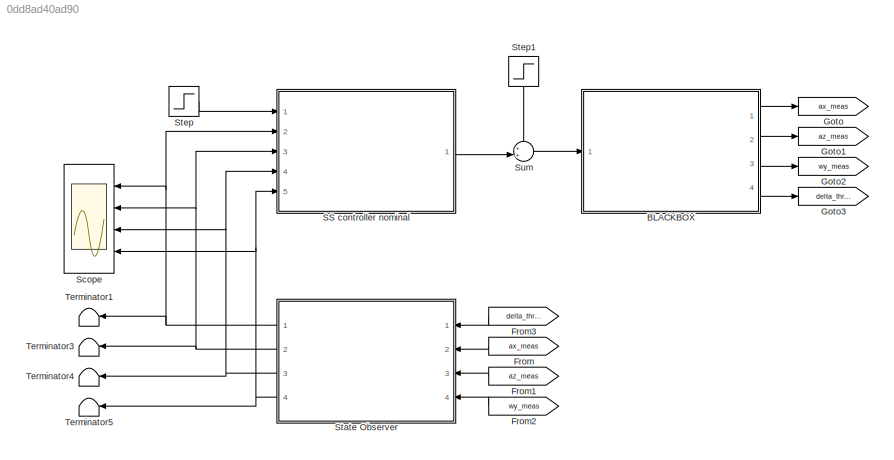
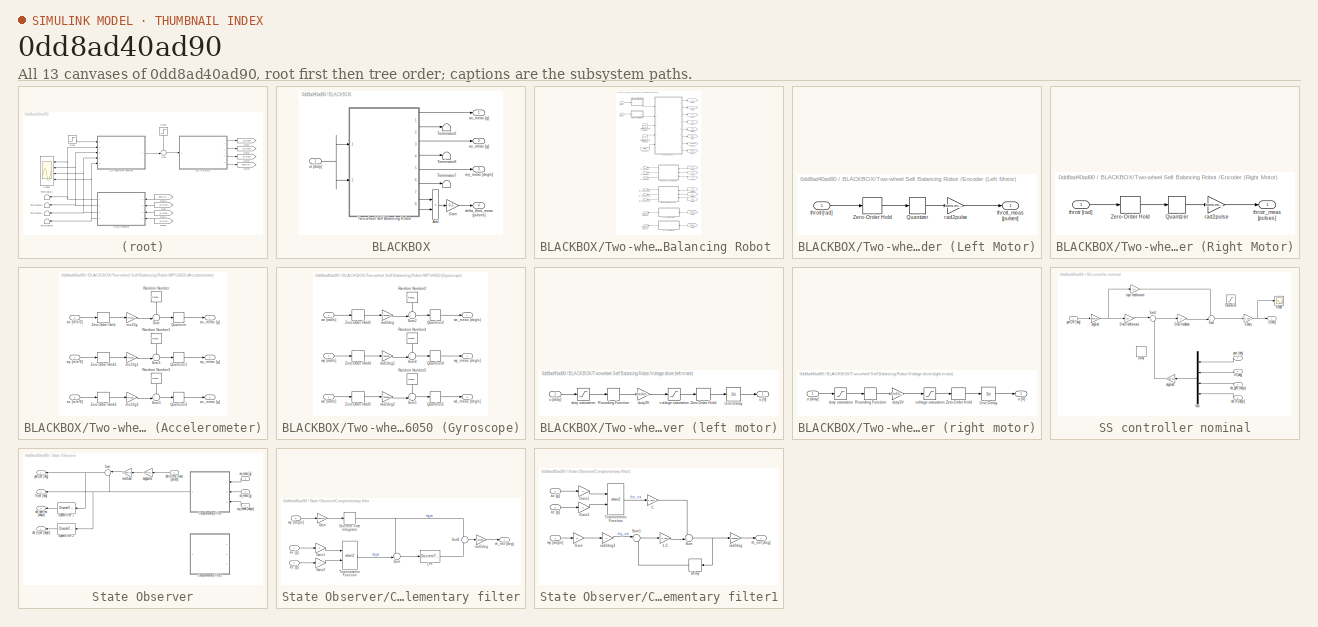
[diagram: thumbnail index - all 13 canvases of the model, root first then tree order]
MODEL slx_0dd8ad40ad90
KIND model
CONFIG AbsTol = auto
CONFIG EnableMultiTasking = off
CONFIG FixedStep = 0.01
CONFIG MaxStep = auto
CONFIG MinStep = auto
CONFIG RelTol = 1e-3
CONFIG SampleTimeConstraint = Unconstrained
CONFIG SolverName = ode45
CONFIG StartTime = 0.0
CONFIG StopTime = 20.0
BLOCK [SubSystem] BLACKBOX
  Ports = [1, 4]
  RequestExecContextInheritance = off
BLOCK [Sum] BLACKBOX/Add
  IconShape = rectangular
  Ports = [2, 1]
BLOCK [Gain] BLACKBOX/Gain
  Gain = 0.5
BLOCK [Terminator] BLACKBOX/Terminator2
BLOCK [Terminator] BLACKBOX/Terminator6
BLOCK [Terminator] BLACKBOX/Terminator7
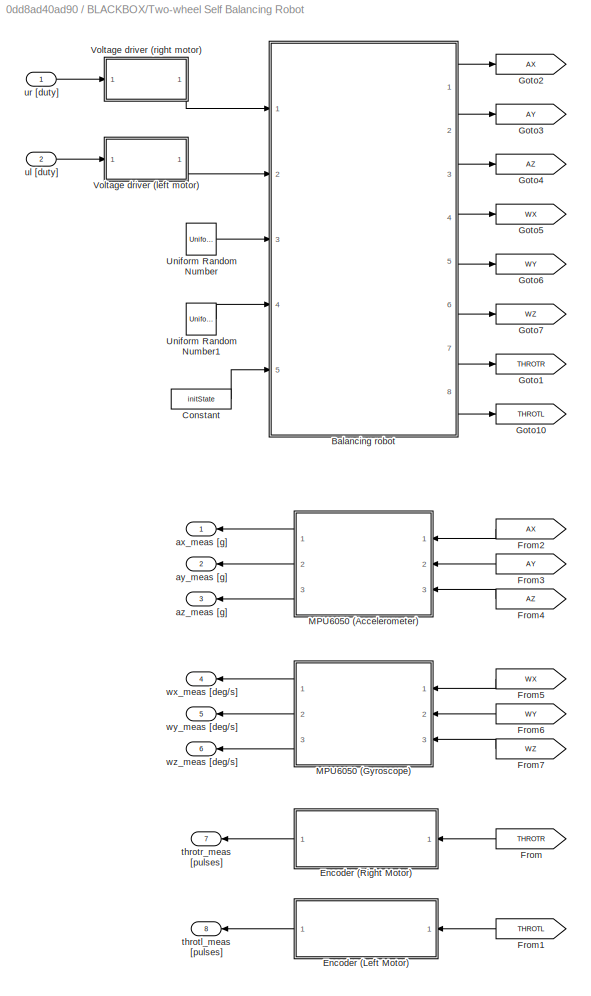
BLOCK [SubSystem] BLACKBOX/Two-wheel Self Balancing Robot 
  Ports = [2, 8]
  RequestExecContextInheritance = off
BLOCK [ModelReference] BLACKBOX/Two-wheel Self Balancing Robot /Balancing robot
  CopyOfModelProtected = on
  ModelNameDialog = balrob3d_win64.slxp
  ModelReferenceVersion = 1.741
  Ports = [5, 8]
BLOCK [Constant] BLACKBOX/Two-wheel Self Balancing Robot /Constant
  Value = initState
BLOCK [SubSystem] BLACKBOX/Two-wheel Self Balancing Robot /Encoder (Left Motor)
  Ports = [1, 1]
  RequestExecContextInheritance = off
BLOCK [Quantizer] BLACKBOX/Two-wheel Self Balancing Robot /Encoder (Left Motor)/Quantizer
  QuantizationInterval = sens.enc.pulse2rad
BLOCK [ZeroOrderHold] BLACKBOX/Two-wheel Self Balancing Robot /Encoder (Left Motor)/Zero-Order Hold
  SampleTime = Ts
BLOCK [Gain] BLACKBOX/Two-wheel Self Balancing Robot /Encoder (Left Motor)/rad2pulse
  Gain = sens.enc.rad2pulse
BLOCK [Inport] BLACKBOX/Two-wheel Self Balancing Robot /Encoder (Left Motor)/throtl [rad]
BLOCK [Outport] BLACKBOX/Two-wheel Self Balancing Robot /Encoder (Left Motor)/throtl_meas [pulses]
BLOCK [SubSystem] BLACKBOX/Two-wheel Self Balancing Robot /Encoder (Right Motor)
  Ports = [1, 1]
  RequestExecContextInheritance = off
BLOCK [Quantizer] BLACKBOX/Two-wheel Self Balancing Robot /Encoder (Right Motor)/Quantizer
  QuantizationInterval = sens.enc.pulse2rad
BLOCK [ZeroOrderHold] BLACKBOX/Two-wheel Self Balancing Robot /Encoder (Right Motor)/Zero-Order Hold
  SampleTime = Ts
BLOCK [Gain] BLACKBOX/Two-wheel Self Balancing Robot /Encoder (Right Motor)/rad2pulse
  Gain = sens.enc.rad2pulse
BLOCK [Inport] BLACKBOX/Two-wheel Self Balancing Robot /Encoder (Right Motor)/throtr [rad]
BLOCK [Outport] BLACKBOX/Two-wheel Self Balancing Robot /Encoder (Right Motor)/throtr_meas [pulses]
BLOCK [From] BLACKBOX/Two-wheel Self Balancing Robot /From
  GotoTag = THROTR
  NameLocation = top
BLOCK [From] BLACKBOX/Two-wheel Self Balancing Robot /From1
  GotoTag = THROTL
  NameLocation = top
BLOCK [From] BLACKBOX/Two-wheel Self Balancing Robot /From2
  GotoTag = AX
  NameLocation = top
BLOCK [From] BLACKBOX/Two-wheel Self Balancing Robot /From3
  GotoTag = AY
  NameLocation = top
BLOCK [From] BLACKBOX/Two-wheel Self Balancing Robot /From4
  GotoTag = AZ
  NameLocation = top
BLOCK [From] BLACKBOX/Two-wheel Self Balancing Robot /From5
  GotoTag = WX
  NameLocation = top
BLOCK [From] BLACKBOX/Two-wheel Self Balancing Robot /From6
  GotoTag = WY
  NameLocation = top
BLOCK [From] BLACKBOX/Two-wheel Self Balancing Robot /From7
  GotoTag = WZ
  NameLocation = top
BLOCK [Goto] BLACKBOX/Two-wheel Self Balancing Robot /Goto1
  GotoTag = THROTR
BLOCK [Goto] BLACKBOX/Two-wheel Self Balancing Robot /Goto10
  GotoTag = THROTL
BLOCK [Goto] BLACKBOX/Two-wheel Self Balancing Robot /Goto2
  GotoTag = AX
BLOCK [Goto] BLACKBOX/Two-wheel Self Balancing Robot /Goto3
  GotoTag = AY
BLOCK [Goto] BLACKBOX/Two-wheel Self Balancing Robot /Goto4
  GotoTag = AZ
BLOCK [Goto] BLACKBOX/Two-wheel Self Balancing Robot /Goto5
  GotoTag = WX
BLOCK [Goto] BLACKBOX/Two-wheel Self Balancing Robot /Goto6
  GotoTag = WY
BLOCK [Goto] BLACKBOX/Two-wheel Self Balancing Robot /Goto7
  GotoTag = WZ
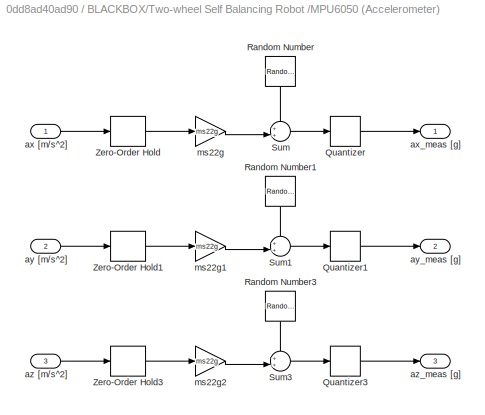
BLOCK [SubSystem] BLACKBOX/Two-wheel Self Balancing Robot /MPU6050 (Accelerometer)
  Ports = [3, 3]
  RequestExecContextInheritance = off
BLOCK [Quantizer] BLACKBOX/Two-wheel Self Balancing Robot /MPU6050 (Accelerometer)/Quantizer
  QuantizationInterval = sens.mpu.acc.LSB2g
BLOCK [Quantizer] BLACKBOX/Two-wheel Self Balancing Robot /MPU6050 (Accelerometer)/Quantizer1
  QuantizationInterval = sens.mpu.acc.LSB2g
BLOCK [Quantizer] BLACKBOX/Two-wheel Self Balancing Robot /MPU6050 (Accelerometer)/Quantizer3
  QuantizationInterval = sens.mpu.acc.LSB2g
BLOCK [RandomNumber] BLACKBOX/Two-wheel Self Balancing Robot /MPU6050 (Accelerometer)/Random Number
  NameLocation = left
  SampleTime = Ts
  Seed = 1
  Variance = sens.mpu.acc.noisevar
BLOCK [RandomNumber] BLACKBOX/Two-wheel Self Balancing Robot /MPU6050 (Accelerometer)/Random Number1
  NameLocation = left
  SampleTime = Ts
  Seed = 10
  Variance = sens.mpu.acc.noisevar
BLOCK [RandomNumber] BLACKBOX/Two-wheel Self Balancing Robot /MPU6050 (Accelerometer)/Random Number3
  NameLocation = left
  SampleTime = Ts
  Seed = 100
  Variance = sens.mpu.acc.noisevar
BLOCK [Sum] BLACKBOX/Two-wheel Self Balancing Robot /MPU6050 (Accelerometer)/Sum
  Inputs = ++|
  Ports = [2, 1]
BLOCK [Sum] BLACKBOX/Two-wheel Self Balancing Robot /MPU6050 (Accelerometer)/Sum1
  Inputs = ++|
  Ports = [2, 1]
BLOCK [Sum] BLACKBOX/Two-wheel Self Balancing Robot /MPU6050 (Accelerometer)/Sum3
  Inputs = ++|
  Ports = [2, 1]
BLOCK [ZeroOrderHold] BLACKBOX/Two-wheel Self Balancing Robot /MPU6050 (Accelerometer)/Zero-Order Hold
  SampleTime = Ts
BLOCK [ZeroOrderHold] BLACKBOX/Two-wheel Self Balancing Robot /MPU6050 (Accelerometer)/Zero-Order Hold1
  SampleTime = Ts
BLOCK [ZeroOrderHold] BLACKBOX/Two-wheel Self Balancing Robot /MPU6050 (Accelerometer)/Zero-Order Hold3
  SampleTime = Ts
BLOCK [Inport] BLACKBOX/Two-wheel Self Balancing Robot /MPU6050 (Accelerometer)/ax [m//s^2]
BLOCK [Outport] BLACKBOX/Two-wheel Self Balancing Robot /MPU6050 (Accelerometer)/ax_meas [g]
BLOCK [Inport] BLACKBOX/Two-wheel Self Balancing Robot /MPU6050 (Accelerometer)/ay [m//s^2]
  Port = 2
BLOCK [Outport] BLACKBOX/Two-wheel Self Balancing Robot /MPU6050 (Accelerometer)/ay_meas [g]
  Port = 2
BLOCK [Inport] BLACKBOX/Two-wheel Self Balancing Robot /MPU6050 (Accelerometer)/az [m//s^2]
  Port = 3
BLOCK [Outport] BLACKBOX/Two-wheel Self Balancing Robot /MPU6050 (Accelerometer)/az_meas [g]
  Port = 3
BLOCK [Gain] BLACKBOX/Two-wheel Self Balancing Robot /MPU6050 (Accelerometer)/ms22g
  Gain = ms22g
BLOCK [Gain] BLACKBOX/Two-wheel Self Balancing Robot /MPU6050 (Accelerometer)/ms22g1
  Gain = ms22g
BLOCK [Gain] BLACKBOX/Two-wheel Self Balancing Robot /MPU6050 (Accelerometer)/ms22g2
  Gain = ms22g
BLOCK [SubSystem] BLACKBOX/Two-wheel Self Balancing Robot /MPU6050 (Gyroscope)
  Ports = [3, 3]
  RequestExecContextInheritance = off
BLOCK [Quantizer] BLACKBOX/Two-wheel Self Balancing Robot /MPU6050 (Gyroscope)/Quantizer2
  QuantizationInterval = sens.mpu.gyro.LSB2degs
BLOCK [Quantizer] BLACKBOX/Two-wheel Self Balancing Robot /MPU6050 (Gyroscope)/Quantizer4
  QuantizationInterval = sens.mpu.gyro.LSB2degs
BLOCK [Quantizer] BLACKBOX/Two-wheel Self Balancing Robot /MPU6050 (Gyroscope)/Quantizer5
  QuantizationInterval = sens.mpu.gyro.LSB2degs
BLOCK [RandomNumber] BLACKBOX/Two-wheel Self Balancing Robot /MPU6050 (Gyroscope)/Random Number2
  NameLocation = left
  SampleTime = Ts
  Seed = 2
  Variance = sens.mpu.gyro.noisevar
BLOCK [RandomNumber] BLACKBOX/Two-wheel Self Balancing Robot /MPU6050 (Gyroscope)/Random Number4
  NameLocation = left
  SampleTime = Ts
  Seed = 20
  Variance = sens.mpu.gyro.noisevar
BLOCK [RandomNumber] BLACKBOX/Two-wheel Self Balancing Robot /MPU6050 (Gyroscope)/Random Number5
  NameLocation = left
  SampleTime = Ts
  Seed = 200
  Variance = sens.mpu.gyro.noisevar
BLOCK [Sum] BLACKBOX/Two-wheel Self Balancing Robot /MPU6050 (Gyroscope)/Sum2
  Inputs = ++|
  Ports = [2, 1]
BLOCK [Sum] BLACKBOX/Two-wheel Self Balancing Robot /MPU6050 (Gyroscope)/Sum4
  Inputs = ++|
  Ports = [2, 1]
BLOCK [Sum] BLACKBOX/Two-wheel Self Balancing Robot /MPU6050 (Gyroscope)/Sum5
  Inputs = ++|
  Ports = [2, 1]
BLOCK [ZeroOrderHold] BLACKBOX/Two-wheel Self Balancing Robot /MPU6050 (Gyroscope)/Zero-Order Hold2
  SampleTime = Ts
BLOCK [ZeroOrderHold] BLACKBOX/Two-wheel Self Balancing Robot /MPU6050 (Gyroscope)/Zero-Order Hold4
  SampleTime = Ts
BLOCK [ZeroOrderHold] BLACKBOX/Two-wheel Self Balancing Robot /MPU6050 (Gyroscope)/Zero-Order Hold5
  SampleTime = Ts
BLOCK [Gain] BLACKBOX/Two-wheel Self Balancing Robot /MPU6050 (Gyroscope)/rad2deg
  Gain = rad2deg
BLOCK [Gain] BLACKBOX/Two-wheel Self Balancing Robot /MPU6050 (Gyroscope)/rad2deg1
  Gain = rad2deg
BLOCK [Gain] BLACKBOX/Two-wheel Self Balancing Robot /MPU6050 (Gyroscope)/rad2deg2
  Gain = rad2deg
BLOCK [Inport] BLACKBOX/Two-wheel Self Balancing Robot /MPU6050 (Gyroscope)/wx [rad//s]
BLOCK [Outport] BLACKBOX/Two-wheel Self Balancing Robot /MPU6050 (Gyroscope)/wx_meas [deg//s]
BLOCK [Inport] BLACKBOX/Two-wheel Self Balancing Robot /MPU6050 (Gyroscope)/wy [rad//s]
  Port = 2
BLOCK [Outport] BLACKBOX/Two-wheel Self Balancing Robot /MPU6050 (Gyroscope)/wy_meas [deg//s]
  Port = 2
BLOCK [Inport] BLACKBOX/Two-wheel Self Balancing Robot /MPU6050 (Gyroscope)/wz [rad//s]
  Port = 3
BLOCK [Outport] BLACKBOX/Two-wheel Self Balancing Robot /MPU6050 (Gyroscope)/wz_meas [deg//s]
  Port = 3
BLOCK [UniformRandomNumber] BLACKBOX/Two-wheel Self Balancing Robot /Uniform Random Number
  Maximum = 1.3
  Minimum = 0.7
  SampleTime = 1
BLOCK [UniformRandomNumber] BLACKBOX/Two-wheel Self Balancing Robot /Uniform Random Number1
  Maximum = 1.3
  Minimum = 0.7
  SampleTime = 1
  Seed = 10
BLOCK [SubSystem] BLACKBOX/Two-wheel Self Balancing Robot /Voltage driver (left motor)
  Ports = [1, 1]
  RequestExecContextInheritance = off
BLOCK [Rounding] BLACKBOX/Two-wheel Self Balancing Robot /Voltage driver (left motor)/Rounding Function
  Operator = fix
BLOCK [UnitDelay] BLACKBOX/Two-wheel Self Balancing Robot /Voltage driver (left motor)/Unit Delay
  HasFrameUpgradeWarning = on
  SampleTime = 1/drv.pwm.Fs
BLOCK [ZeroOrderHold] BLACKBOX/Two-wheel Self Balancing Robot /Voltage driver (left motor)/Zero-Order Hold
  SampleTime = Ts
BLOCK [Saturate] BLACKBOX/Two-wheel Self Balancing Robot /Voltage driver (left motor)/duty saturation
  LowerLimit = -255
  UpperLimit = 255
BLOCK [Gain] BLACKBOX/Two-wheel Self Balancing Robot /Voltage driver (left motor)/duty2V
  Gain = drv.duty2V
BLOCK [Outport] BLACKBOX/Two-wheel Self Balancing Robot /Voltage driver (left motor)/u [V]
BLOCK [Inport] BLACKBOX/Two-wheel Self Balancing Robot /Voltage driver (left motor)/u [duty]
BLOCK [Saturate] BLACKBOX/Two-wheel Self Balancing Robot /Voltage driver (left motor)/voltage saturation
  LowerLimit = -drv.Vbus
  UpperLimit = drv.Vbus
BLOCK [SubSystem] BLACKBOX/Two-wheel Self Balancing Robot /Voltage driver (right motor)
  Ports = [1, 1]
  RequestExecContextInheritance = off
BLOCK [Rounding] BLACKBOX/Two-wheel Self Balancing Robot /Voltage driver (right motor)/Rounding Function
  Operator = fix
BLOCK [UnitDelay] BLACKBOX/Two-wheel Self Balancing Robot /Voltage driver (right motor)/Unit Delay
  HasFrameUpgradeWarning = on
  SampleTime = 1/drv.pwm.Fs
BLOCK [ZeroOrderHold] BLACKBOX/Two-wheel Self Balancing Robot /Voltage driver (right motor)/Zero-Order Hold
  SampleTime = Ts
BLOCK [Saturate] BLACKBOX/Two-wheel Self Balancing Robot /Voltage driver (right motor)/duty saturation
  LowerLimit = -255
  UpperLimit = 255
BLOCK [Gain] BLACKBOX/Two-wheel Self Balancing Robot /Voltage driver (right motor)/duty2V
  Gain = drv.duty2V
BLOCK [Outport] BLACKBOX/Two-wheel Self Balancing Robot /Voltage driver (right motor)/u [V]
BLOCK [Inport] BLACKBOX/Two-wheel Self Balancing Robot /Voltage driver (right motor)/u [duty]
BLOCK [Saturate] BLACKBOX/Two-wheel Self Balancing Robot /Voltage driver (right motor)/voltage saturation
  LowerLimit = -drv.Vbus
  UpperLimit = drv.Vbus
BLOCK [Outport] BLACKBOX/Two-wheel Self Balancing Robot /ax_meas [g]
BLOCK [Outport] BLACKBOX/Two-wheel Self Balancing Robot /ay_meas [g]
  Port = 2
BLOCK [Outport] BLACKBOX/Two-wheel Self Balancing Robot /az_meas [g]
  Port = 3
BLOCK [Outport] BLACKBOX/Two-wheel Self Balancing Robot /throtl_meas [pulses]
  Port = 8
BLOCK [Outport] BLACKBOX/Two-wheel Self Balancing Robot /throtr_meas [pulses]
  Port = 7
BLOCK [Inport] BLACKBOX/Two-wheel Self Balancing Robot /ul [duty]
  Port = 2
BLOCK [Inport] BLACKBOX/Two-wheel Self Balancing Robot /ur [duty]
BLOCK [Outport] BLACKBOX/Two-wheel Self Balancing Robot /wx_meas [deg//s]
  Port = 4
BLOCK [Outport] BLACKBOX/Two-wheel Self Balancing Robot /wy_meas [deg//s]
  Port = 5
BLOCK [Outport] BLACKBOX/Two-wheel Self Balancing Robot /wz_meas [deg//s]
  Port = 6
BLOCK [Outport] BLACKBOX/ax_meas [g]
BLOCK [Outport] BLACKBOX/az_meas [g]
  Port = 2
BLOCK [Outport] BLACKBOX/delta_throt_meas [pulses]
  Port = 4
BLOCK [Inport] BLACKBOX/ul [duty]
BLOCK [Outport] BLACKBOX/wy_meas [deg//s]
  Port = 3
BLOCK [From] From
  GotoTag = ax_meas
BLOCK [From] From1
  GotoTag = az_meas
BLOCK [From] From2
  GotoTag = wy_meas
BLOCK [From] From3
  GotoTag = delta_throt
BLOCK [Goto] Goto
  GotoTag = ax_meas
BLOCK [Goto] Goto1
  GotoTag = az_meas
BLOCK [Goto] Goto2
  GotoTag = wy_meas
BLOCK [Goto] Goto3
  GotoTag = delta_throt
BLOCK [SubSystem] SS controller nominal
  Ports = [5, 1]
  RequestExecContextInheritance = off
BLOCK [Delay] SS controller nominal/Delay
  DelayLength = 1
  InitialCondition = 0
  InputPortMap = u0
  NameLocation = right
  Ports = [1, 1]
BLOCK [Gain] SS controller nominal/Input feedforward
  Gain = N_u
BLOCK [Mux] SS controller nominal/Mux
  DisplayOption = bar
  Ports = [4, 1]
BLOCK [Saturate] SS controller nominal/Saturation
  LowerLimit = -10
  UpperLimit = 10
BLOCK [Scope] SS controller nominal/Scope
  Floating = off
  NumInputPorts = 1
  Ports = [1]
  ScopeSpecificationString = Simulink.scopes.TimeScopeBlockCfg('CurrentConfiguration', extmgr.ConfigurationSet(extmgr.Configuration('Core','General UI',true),extmgr.Configuration('Core','Source UI',true),extmgr.Configuration('Sources','WiredSimulink',true,'DataLoggingVariableName','aaaaa','DataLogging',true,'DataLoggingSaveFormat','StructureWithTime'),extmgr.Configuration('Visuals','Time Domain',true,'SerializedDisplays',{str...<+1479ch>
BLOCK [Gain] SS controller nominal/State feedback
  Gain = K'
  Multiplication = Matrix(u*K)
BLOCK [Gain] SS controller nominal/State feedforward	
  Gain = N_x
  Multiplication = Matrix(u*K)
BLOCK [Sum] SS controller nominal/Sum
  Inputs = ++|
  Ports = [2, 1]
BLOCK [Sum] SS controller nominal/Sum2
  Inputs = |+-
  Ports = [2, 1]
BLOCK [Gain] SS controller nominal/V2duty
  Gain = drv.V2duty
BLOCK [Gain] SS controller nominal/deg2rad
  Gain = deg2rad
BLOCK [Gain] SS controller nominal/deg2rad1
  Gain = deg2rad
BLOCK [Inport] SS controller nominal/dot_gam [deg//s]
  Port = 4
BLOCK [Inport] SS controller nominal/dot_th [deg//s]
  Port = 5
BLOCK [Inport] SS controller nominal/gam [deg]
  Port = 2
BLOCK [Inport] SS controller nominal/gam_ref [deg]
BLOCK [Inport] SS controller nominal/th [deg]
  Port = 3
BLOCK [Outport] SS controller nominal/u [duty]
BLOCK [Scope] Scope
  Floating = off
  NumInputPorts = 4
  Ports = [4]
  ScopeSpecificationString = Simulink.scopes.TimeScopeBlockCfg('CurrentConfiguration', extmgr.ConfigurationSet(extmgr.Configuration('Core','General UI',true),extmgr.Configuration('Core','Source UI',true),extmgr.Configuration('Sources','WiredSimulink',true,'DataLogging',true,'DataLoggingVariableName','MotorData','DataLoggingSaveFormat','StructureWithTime'),extmgr.Configuration('Visuals','Time Domain',true,'SerializedDisplays',...<+3560ch>
BLOCK [SubSystem] State Observer
  Ports = [4, 4]
  RequestExecContextInheritance = off
BLOCK [SubSystem] State Observer/Complementary filter
  Ports = [3, 1]
  RequestExecContextInheritance = off
BLOCK [DiscreteIntegrator] State Observer/Complementary filter/Discrete-Time Integrator
  ICPrevOutput = DiscIntNeverNeededParam
  ICPrevScaledInput = DiscIntNeverNeededParam
  InitialConditionSetting = Auto
  Ports = [1, 1]
  SampleTime = Ts
  gainval = 1
BLOCK [Gain] State Observer/Complementary filter/Gain
  Gain = deg2rad
BLOCK [Gain] State Observer/Complementary filter/Gain1
BLOCK [Gain] State Observer/Complementary filter/Gain2
  Gain = -1
BLOCK [DiscreteTransferFcn] State Observer/Complementary filter/LPF
  Denominator = [denLPFz]
  InputPortMap = u0
  Numerator = [numLPFz]
  Ports = [1, 1]
  SampleTime = Ts
BLOCK [Sum] State Observer/Complementary filter/Sum
  Inputs = -+|
  Ports = [2, 1]
BLOCK [Sum] State Observer/Complementary filter/Sum1
  Ports = [2, 1]
BLOCK [Trigonometry] State Observer/Complementary filter/Trigonometric Function
  Operator = atan2
  Ports = [2, 1]
BLOCK [Inport] State Observer/Complementary filter/ax [g] 
BLOCK [Inport] State Observer/Complementary filter/az [g] 
  Port = 2
BLOCK [Gain] State Observer/Complementary filter/rad2deg
  Gain = rad2deg
BLOCK [Outport] State Observer/Complementary filter/th_est [deg] 
BLOCK [Inport] State Observer/Complementary filter/wy [deg//s]
  Port = 3
BLOCK [SubSystem] State Observer/Complementary filter1
  Ports = [3, 1]
  RequestExecContextInheritance = off
BLOCK [Gain] State Observer/Complementary filter1/1-C
  Gain = 1-C_gain
BLOCK [Gain] State Observer/Complementary filter1/C
  Gain = C_gain
BLOCK [Delay] State Observer/Complementary filter1/Delay
  DelayLength = 1
  InputPortMap = u0
  NameLocation = top
  Ports = [1, 1]
BLOCK [Gain] State Observer/Complementary filter1/Gain
  Gain = 11
BLOCK [Gain] State Observer/Complementary filter1/Gain1
BLOCK [Gain] State Observer/Complementary filter1/Gain2
  Gain = -1
BLOCK [Sum] State Observer/Complementary filter1/Sum
  Inputs = ++|
  Ports = [2, 1]
BLOCK [Sum] State Observer/Complementary filter1/Sum1
  Inputs = |++
  Ports = [2, 1]
BLOCK [Trigonometry] State Observer/Complementary filter1/Trigonometric Function
  Operator = atan2
  Ports = [2, 1]
BLOCK [Inport] State Observer/Complementary filter1/ax [g] 
  Port = 2
BLOCK [Inport] State Observer/Complementary filter1/az [g] 
  Port = 3
BLOCK [Gain] State Observer/Complementary filter1/rad2deg
  Gain = rad2deg
BLOCK [Gain] State Observer/Complementary filter1/rad2deg3
  Gain = T
BLOCK [Outport] State Observer/Complementary filter1/th_est [deg] 
BLOCK [Inport] State Observer/Complementary filter1/wy [deg//s]
BLOCK [DiscreteTransferFcn] State Observer/Speed filter 1
  Denominator = [denHw]
  InputPortMap = u0
  Numerator = [numHw]
  Ports = [1, 1]
  SampleTime = Ts
BLOCK [DiscreteTransferFcn] State Observer/Speed filter 2
  Denominator = [denHw]
  InputPortMap = u0
  Numerator = [numHw]
  Ports = [1, 1]
  SampleTime = Ts
BLOCK [Sum] State Observer/Sum
  Inputs = |++
  NameLocation = top
  Ports = [2, 1]
BLOCK [Inport] State Observer/ax_meas [g] 
  Port = 2
BLOCK [Inport] State Observer/az_meas [g] 
  Port = 3
BLOCK [Gain] State Observer/deg2pulse
  Gain = sens.enc.pulse2deg
BLOCK [Inport] State Observer/delta_throt_meas [pulses] 
BLOCK [Outport] State Observer/dot_gam_est [deg//s]
  Port = 3
BLOCK [Outport] State Observer/dot_th_est [deg//s]
  Port = 4
BLOCK [Outport] State Observer/gam_est [deg]
BLOCK [Gain] State Observer/mot2load
  Gain = 1/gbox.N
BLOCK [Outport] State Observer/th_est [deg]
  Port = 2
BLOCK [Inport] State Observer/wy_meas [deg//s]
  Port = 4
BLOCK [Step] Step
  After = step_size
  SampleTime = 0.01
BLOCK [Step] Step1
  After = step_disturbance
  NameLocation = left
  SampleTime = 0.01
  Time = 11
BLOCK [Sum] Sum
  Inputs = ++|
  Ports = [2, 1]
BLOCK [Terminator] Terminator1
BLOCK [Terminator] Terminator3
BLOCK [Terminator] Terminator4
BLOCK [Terminator] Terminator5
LINE BLACKBOX/Add:1 -> BLACKBOX/Gain:1
LINE BLACKBOX/Gain:1 -> BLACKBOX/delta_throt_meas [pulses]:1
LINE BLACKBOX/Two-wheel Self Balancing Robot /Balancing robot:1 -> BLACKBOX/Two-wheel Self Balancing Robot /Goto2:1
LINE BLACKBOX/Two-wheel Self Balancing Robot /Balancing robot:2 -> BLACKBOX/Two-wheel Self Balancing Robot /Goto3:1
LINE BLACKBOX/Two-wheel Self Balancing Robot /Balancing robot:3 -> BLACKBOX/Two-wheel Self Balancing Robot /Goto4:1
LINE BLACKBOX/Two-wheel Self Balancing Robot /Balancing robot:4 -> BLACKBOX/Two-wheel Self Balancing Robot /Goto5:1
LINE BLACKBOX/Two-wheel Self Balancing Robot /Balancing robot:5 -> BLACKBOX/Two-wheel Self Balancing Robot /Goto6:1
LINE BLACKBOX/Two-wheel Self Balancing Robot /Balancing robot:6 -> BLACKBOX/Two-wheel Self Balancing Robot /Goto7:1
LINE BLACKBOX/Two-wheel Self Balancing Robot /Balancing robot:7 -> BLACKBOX/Two-wheel Self Balancing Robot /Goto1:1
LINE BLACKBOX/Two-wheel Self Balancing Robot /Balancing robot:8 -> BLACKBOX/Two-wheel Self Balancing Robot /Goto10:1
LINE BLACKBOX/Two-wheel Self Balancing Robot /Constant:1 -> BLACKBOX/Two-wheel Self Balancing Robot /Balancing robot:5
LINE BLACKBOX/Two-wheel Self Balancing Robot /Encoder (Left Motor)/Quantizer:1 -> BLACKBOX/Two-wheel Self Balancing Robot /Encoder (Left Motor)/rad2pulse:1
LINE BLACKBOX/Two-wheel Self Balancing Robot /Encoder (Left Motor)/Zero-Order Hold:1 -> BLACKBOX/Two-wheel Self Balancing Robot /Encoder (Left Motor)/Quantizer:1
LINE BLACKBOX/Two-wheel Self Balancing Robot /Encoder (Left Motor)/rad2pulse:1 -> BLACKBOX/Two-wheel Self Balancing Robot /Encoder (Left Motor)/throtl_meas [pulses]:1
LINE BLACKBOX/Two-wheel Self Balancing Robot /Encoder (Left Motor)/throtl [rad]:1 -> BLACKBOX/Two-wheel Self Balancing Robot /Encoder (Left Motor)/Zero-Order Hold:1
LINE BLACKBOX/Two-wheel Self Balancing Robot /Encoder (Left Motor):1 -> BLACKBOX/Two-wheel Self Balancing Robot /throtl_meas [pulses]:1
LINE BLACKBOX/Two-wheel Self Balancing Robot /Encoder (Right Motor)/Quantizer:1 -> BLACKBOX/Two-wheel Self Balancing Robot /Encoder (Right Motor)/rad2pulse:1
LINE BLACKBOX/Two-wheel Self Balancing Robot /Encoder (Right Motor)/Zero-Order Hold:1 -> BLACKBOX/Two-wheel Self Balancing Robot /Encoder (Right Motor)/Quantizer:1
LINE BLACKBOX/Two-wheel Self Balancing Robot /Encoder (Right Motor)/rad2pulse:1 -> BLACKBOX/Two-wheel Self Balancing Robot /Encoder (Right Motor)/throtr_meas [pulses]:1
LINE BLACKBOX/Two-wheel Self Balancing Robot /Encoder (Right Motor)/throtr [rad]:1 -> BLACKBOX/Two-wheel Self Balancing Robot /Encoder (Right Motor)/Zero-Order Hold:1
LINE BLACKBOX/Two-wheel Self Balancing Robot /Encoder (Right Motor):1 -> BLACKBOX/Two-wheel Self Balancing Robot /throtr_meas [pulses]:1
LINE BLACKBOX/Two-wheel Self Balancing Robot /From1:1 -> BLACKBOX/Two-wheel Self Balancing Robot /Encoder (Left Motor):1
LINE BLACKBOX/Two-wheel Self Balancing Robot /From2:1 -> BLACKBOX/Two-wheel Self Balancing Robot /MPU6050 (Accelerometer):1
LINE BLACKBOX/Two-wheel Self Balancing Robot /From3:1 -> BLACKBOX/Two-wheel Self Balancing Robot /MPU6050 (Accelerometer):2
LINE BLACKBOX/Two-wheel Self Balancing Robot /From4:1 -> BLACKBOX/Two-wheel Self Balancing Robot /MPU6050 (Accelerometer):3
LINE BLACKBOX/Two-wheel Self Balancing Robot /From5:1 -> BLACKBOX/Two-wheel Self Balancing Robot /MPU6050 (Gyroscope):1
LINE BLACKBOX/Two-wheel Self Balancing Robot /From6:1 -> BLACKBOX/Two-wheel Self Balancing Robot /MPU6050 (Gyroscope):2
LINE BLACKBOX/Two-wheel Self Balancing Robot /From7:1 -> BLACKBOX/Two-wheel Self Balancing Robot /MPU6050 (Gyroscope):3
LINE BLACKBOX/Two-wheel Self Balancing Robot /From:1 -> BLACKBOX/Two-wheel Self Balancing Robot /Encoder (Right Motor):1
LINE BLACKBOX/Two-wheel Self Balancing Robot /MPU6050 (Accelerometer)/Quantizer1:1 -> BLACKBOX/Two-wheel Self Balancing Robot /MPU6050 (Accelerometer)/ay_meas [g]:1
LINE BLACKBOX/Two-wheel Self Balancing Robot /MPU6050 (Accelerometer)/Quantizer3:1 -> BLACKBOX/Two-wheel Self Balancing Robot /MPU6050 (Accelerometer)/az_meas [g]:1
LINE BLACKBOX/Two-wheel Self Balancing Robot /MPU6050 (Accelerometer)/Quantizer:1 -> BLACKBOX/Two-wheel Self Balancing Robot /MPU6050 (Accelerometer)/ax_meas [g]:1
LINE BLACKBOX/Two-wheel Self Balancing Robot /MPU6050 (Accelerometer)/Random Number1:1 -> BLACKBOX/Two-wheel Self Balancing Robot /MPU6050 (Accelerometer)/Sum1:1
LINE BLACKBOX/Two-wheel Self Balancing Robot /MPU6050 (Accelerometer)/Random Number3:1 -> BLACKBOX/Two-wheel Self Balancing Robot /MPU6050 (Accelerometer)/Sum3:1
LINE BLACKBOX/Two-wheel Self Balancing Robot /MPU6050 (Accelerometer)/Random Number:1 -> BLACKBOX/Two-wheel Self Balancing Robot /MPU6050 (Accelerometer)/Sum:1
LINE BLACKBOX/Two-wheel Self Balancing Robot /MPU6050 (Accelerometer)/Sum1:1 -> BLACKBOX/Two-wheel Self Balancing Robot /MPU6050 (Accelerometer)/Quantizer1:1
LINE BLACKBOX/Two-wheel Self Balancing Robot /MPU6050 (Accelerometer)/Sum3:1 -> BLACKBOX/Two-wheel Self Balancing Robot /MPU6050 (Accelerometer)/Quantizer3:1
LINE BLACKBOX/Two-wheel Self Balancing Robot /MPU6050 (Accelerometer)/Sum:1 -> BLACKBOX/Two-wheel Self Balancing Robot /MPU6050 (Accelerometer)/Quantizer:1
LINE BLACKBOX/Two-wheel Self Balancing Robot /MPU6050 (Accelerometer)/Zero-Order Hold1:1 -> BLACKBOX/Two-wheel Self Balancing Robot /MPU6050 (Accelerometer)/ms22g1:1
LINE BLACKBOX/Two-wheel Self Balancing Robot /MPU6050 (Accelerometer)/Zero-Order Hold3:1 -> BLACKBOX/Two-wheel Self Balancing Robot /MPU6050 (Accelerometer)/ms22g2:1
LINE BLACKBOX/Two-wheel Self Balancing Robot /MPU6050 (Accelerometer)/Zero-Order Hold:1 -> BLACKBOX/Two-wheel Self Balancing Robot /MPU6050 (Accelerometer)/ms22g:1
LINE BLACKBOX/Two-wheel Self Balancing Robot /MPU6050 (Accelerometer)/ax [m//s^2]:1 -> BLACKBOX/Two-wheel Self Balancing Robot /MPU6050 (Accelerometer)/Zero-Order Hold:1
LINE BLACKBOX/Two-wheel Self Balancing Robot /MPU6050 (Accelerometer)/ay [m//s^2]:1 -> BLACKBOX/Two-wheel Self Balancing Robot /MPU6050 (Accelerometer)/Zero-Order Hold1:1
LINE BLACKBOX/Two-wheel Self Balancing Robot /MPU6050 (Accelerometer)/az [m//s^2]:1 -> BLACKBOX/Two-wheel Self Balancing Robot /MPU6050 (Accelerometer)/Zero-Order Hold3:1
LINE BLACKBOX/Two-wheel Self Balancing Robot /MPU6050 (Accelerometer)/ms22g1:1 -> BLACKBOX/Two-wheel Self Balancing Robot /MPU6050 (Accelerometer)/Sum1:2
LINE BLACKBOX/Two-wheel Self Balancing Robot /MPU6050 (Accelerometer)/ms22g2:1 -> BLACKBOX/Two-wheel Self Balancing Robot /MPU6050 (Accelerometer)/Sum3:2
LINE BLACKBOX/Two-wheel Self Balancing Robot /MPU6050 (Accelerometer)/ms22g:1 -> BLACKBOX/Two-wheel Self Balancing Robot /MPU6050 (Accelerometer)/Sum:2
LINE BLACKBOX/Two-wheel Self Balancing Robot /MPU6050 (Accelerometer):1 -> BLACKBOX/Two-wheel Self Balancing Robot /ax_meas [g]:1
LINE BLACKBOX/Two-wheel Self Balancing Robot /MPU6050 (Accelerometer):2 -> BLACKBOX/Two-wheel Self Balancing Robot /ay_meas [g]:1
LINE BLACKBOX/Two-wheel Self Balancing Robot /MPU6050 (Accelerometer):3 -> BLACKBOX/Two-wheel Self Balancing Robot /az_meas [g]:1
LINE BLACKBOX/Two-wheel Self Balancing Robot /MPU6050 (Gyroscope)/Quantizer2:1 -> BLACKBOX/Two-wheel Self Balancing Robot /MPU6050 (Gyroscope)/wx_meas [deg//s]:1
LINE BLACKBOX/Two-wheel Self Balancing Robot /MPU6050 (Gyroscope)/Quantizer4:1 -> BLACKBOX/Two-wheel Self Balancing Robot /MPU6050 (Gyroscope)/wy_meas [deg//s]:1
LINE BLACKBOX/Two-wheel Self Balancing Robot /MPU6050 (Gyroscope)/Quantizer5:1 -> BLACKBOX/Two-wheel Self Balancing Robot /MPU6050 (Gyroscope)/wz_meas [deg//s]:1
LINE BLACKBOX/Two-wheel Self Balancing Robot /MPU6050 (Gyroscope)/Random Number2:1 -> BLACKBOX/Two-wheel Self Balancing Robot /MPU6050 (Gyroscope)/Sum2:1
LINE BLACKBOX/Two-wheel Self Balancing Robot /MPU6050 (Gyroscope)/Random Number4:1 -> BLACKBOX/Two-wheel Self Balancing Robot /MPU6050 (Gyroscope)/Sum4:1
LINE BLACKBOX/Two-wheel Self Balancing Robot /MPU6050 (Gyroscope)/Random Number5:1 -> BLACKBOX/Two-wheel Self Balancing Robot /MPU6050 (Gyroscope)/Sum5:1
LINE BLACKBOX/Two-wheel Self Balancing Robot /MPU6050 (Gyroscope)/Sum2:1 -> BLACKBOX/Two-wheel Self Balancing Robot /MPU6050 (Gyroscope)/Quantizer2:1
LINE BLACKBOX/Two-wheel Self Balancing Robot /MPU6050 (Gyroscope)/Sum4:1 -> BLACKBOX/Two-wheel Self Balancing Robot /MPU6050 (Gyroscope)/Quantizer4:1
LINE BLACKBOX/Two-wheel Self Balancing Robot /MPU6050 (Gyroscope)/Sum5:1 -> BLACKBOX/Two-wheel Self Balancing Robot /MPU6050 (Gyroscope)/Quantizer5:1
LINE BLACKBOX/Two-wheel Self Balancing Robot /MPU6050 (Gyroscope)/Zero-Order Hold2:1 -> BLACKBOX/Two-wheel Self Balancing Robot /MPU6050 (Gyroscope)/rad2deg:1
LINE BLACKBOX/Two-wheel Self Balancing Robot /MPU6050 (Gyroscope)/Zero-Order Hold4:1 -> BLACKBOX/Two-wheel Self Balancing Robot /MPU6050 (Gyroscope)/rad2deg1:1
LINE BLACKBOX/Two-wheel Self Balancing Robot /MPU6050 (Gyroscope)/Zero-Order Hold5:1 -> BLACKBOX/Two-wheel Self Balancing Robot /MPU6050 (Gyroscope)/rad2deg2:1
LINE BLACKBOX/Two-wheel Self Balancing Robot /MPU6050 (Gyroscope)/rad2deg1:1 -> BLACKBOX/Two-wheel Self Balancing Robot /MPU6050 (Gyroscope)/Sum4:2
LINE BLACKBOX/Two-wheel Self Balancing Robot /MPU6050 (Gyroscope)/rad2deg2:1 -> BLACKBOX/Two-wheel Self Balancing Robot /MPU6050 (Gyroscope)/Sum5:2
LINE BLACKBOX/Two-wheel Self Balancing Robot /MPU6050 (Gyroscope)/rad2deg:1 -> BLACKBOX/Two-wheel Self Balancing Robot /MPU6050 (Gyroscope)/Sum2:2
LINE BLACKBOX/Two-wheel Self Balancing Robot /MPU6050 (Gyroscope)/wx [rad//s]:1 -> BLACKBOX/Two-wheel Self Balancing Robot /MPU6050 (Gyroscope)/Zero-Order Hold2:1
LINE BLACKBOX/Two-wheel Self Balancing Robot /MPU6050 (Gyroscope)/wy [rad//s]:1 -> BLACKBOX/Two-wheel Self Balancing Robot /MPU6050 (Gyroscope)/Zero-Order Hold4:1
LINE BLACKBOX/Two-wheel Self Balancing Robot /MPU6050 (Gyroscope)/wz [rad//s]:1 -> BLACKBOX/Two-wheel Self Balancing Robot /MPU6050 (Gyroscope)/Zero-Order Hold5:1
LINE BLACKBOX/Two-wheel Self Balancing Robot /MPU6050 (Gyroscope):1 -> BLACKBOX/Two-wheel Self Balancing Robot /wx_meas [deg//s]:1
LINE BLACKBOX/Two-wheel Self Balancing Robot /MPU6050 (Gyroscope):2 -> BLACKBOX/Two-wheel Self Balancing Robot /wy_meas [deg//s]:1
LINE BLACKBOX/Two-wheel Self Balancing Robot /MPU6050 (Gyroscope):3 -> BLACKBOX/Two-wheel Self Balancing Robot /wz_meas [deg//s]:1
LINE BLACKBOX/Two-wheel Self Balancing Robot /Uniform Random Number1:1 -> BLACKBOX/Two-wheel Self Balancing Robot /Balancing robot:4
LINE BLACKBOX/Two-wheel Self Balancing Robot /Uniform Random Number:1 -> BLACKBOX/Two-wheel Self Balancing Robot /Balancing robot:3
LINE BLACKBOX/Two-wheel Self Balancing Robot /Voltage driver (left motor)/Rounding Function:1 -> BLACKBOX/Two-wheel Self Balancing Robot /Voltage driver (left motor)/duty2V:1
LINE BLACKBOX/Two-wheel Self Balancing Robot /Voltage driver (left motor)/Unit Delay:1 -> BLACKBOX/Two-wheel Self Balancing Robot /Voltage driver (left motor)/u [V]:1
LINE BLACKBOX/Two-wheel Self Balancing Robot /Voltage driver (left motor)/Zero-Order Hold:1 -> BLACKBOX/Two-wheel Self Balancing Robot /Voltage driver (left motor)/Unit Delay:1
LINE BLACKBOX/Two-wheel Self Balancing Robot /Voltage driver (left motor)/duty saturation:1 -> BLACKBOX/Two-wheel Self Balancing Robot /Voltage driver (left motor)/Rounding Function:1
LINE BLACKBOX/Two-wheel Self Balancing Robot /Voltage driver (left motor)/duty2V:1 -> BLACKBOX/Two-wheel Self Balancing Robot /Voltage driver (left motor)/voltage saturation:1
LINE BLACKBOX/Two-wheel Self Balancing Robot /Voltage driver (left motor)/u [duty]:1 -> BLACKBOX/Two-wheel Self Balancing Robot /Voltage driver (left motor)/duty saturation:1
LINE BLACKBOX/Two-wheel Self Balancing Robot /Voltage driver (left motor)/voltage saturation:1 -> BLACKBOX/Two-wheel Self Balancing Robot /Voltage driver (left motor)/Zero-Order Hold:1
LINE BLACKBOX/Two-wheel Self Balancing Robot /Voltage driver (left motor):1 -> BLACKBOX/Two-wheel Self Balancing Robot /Balancing robot:2
LINE BLACKBOX/Two-wheel Self Balancing Robot /Voltage driver (right motor)/Rounding Function:1 -> BLACKBOX/Two-wheel Self Balancing Robot /Voltage driver (right motor)/duty2V:1
LINE BLACKBOX/Two-wheel Self Balancing Robot /Voltage driver (right motor)/Unit Delay:1 -> BLACKBOX/Two-wheel Self Balancing Robot /Voltage driver (right motor)/u [V]:1
LINE BLACKBOX/Two-wheel Self Balancing Robot /Voltage driver (right motor)/Zero-Order Hold:1 -> BLACKBOX/Two-wheel Self Balancing Robot /Voltage driver (right motor)/Unit Delay:1
LINE BLACKBOX/Two-wheel Self Balancing Robot /Voltage driver (right motor)/duty saturation:1 -> BLACKBOX/Two-wheel Self Balancing Robot /Voltage driver (right motor)/Rounding Function:1
LINE BLACKBOX/Two-wheel Self Balancing Robot /Voltage driver (right motor)/duty2V:1 -> BLACKBOX/Two-wheel Self Balancing Robot /Voltage driver (right motor)/voltage saturation:1
LINE BLACKBOX/Two-wheel Self Balancing Robot /Voltage driver (right motor)/u [duty]:1 -> BLACKBOX/Two-wheel Self Balancing Robot /Voltage driver (right motor)/duty saturation:1
LINE BLACKBOX/Two-wheel Self Balancing Robot /Voltage driver (right motor)/voltage saturation:1 -> BLACKBOX/Two-wheel Self Balancing Robot /Voltage driver (right motor)/Zero-Order Hold:1
LINE BLACKBOX/Two-wheel Self Balancing Robot /Voltage driver (right motor):1 -> BLACKBOX/Two-wheel Self Balancing Robot /Balancing robot:1
LINE BLACKBOX/Two-wheel Self Balancing Robot /ul [duty]:1 -> BLACKBOX/Two-wheel Self Balancing Robot /Voltage driver (left motor):1
LINE BLACKBOX/Two-wheel Self Balancing Robot /ur [duty]:1 -> BLACKBOX/Two-wheel Self Balancing Robot /Voltage driver (right motor):1
LINE BLACKBOX/Two-wheel Self Balancing Robot :1 -> BLACKBOX/ax_meas [g]:1
LINE BLACKBOX/Two-wheel Self Balancing Robot :2 -> BLACKBOX/Terminator2:1
LINE BLACKBOX/Two-wheel Self Balancing Robot :3 -> BLACKBOX/az_meas [g]:1
LINE BLACKBOX/Two-wheel Self Balancing Robot :4 -> BLACKBOX/Terminator6:1
LINE BLACKBOX/Two-wheel Self Balancing Robot :5 -> BLACKBOX/wy_meas [deg//s]:1
LINE BLACKBOX/Two-wheel Self Balancing Robot :6 -> BLACKBOX/Terminator7:1
LINE BLACKBOX/Two-wheel Self Balancing Robot :7 -> BLACKBOX/Add:1
LINE BLACKBOX/Two-wheel Self Balancing Robot :8 -> BLACKBOX/Add:2
NET BLACKBOX/ul [duty]:1 -> BLACKBOX/Two-wheel Self Balancing Robot :1, BLACKBOX/Two-wheel Self Balancing Robot :2
LINE BLACKBOX:1 -> Goto:1
LINE BLACKBOX:2 -> Goto1:1
LINE BLACKBOX:3 -> Goto2:1
LINE BLACKBOX:4 -> Goto3:1
LINE From1:1 -> State Observer:3
LINE From2:1 -> State Observer:4
LINE From3:1 -> State Observer:1
LINE From:1 -> State Observer:2
LINE SS controller nominal/Input feedforward:1 -> SS controller nominal/Sum:1
LINE SS controller nominal/Mux:1 -> SS controller nominal/deg2rad1:1
LINE SS controller nominal/State feedback:1 -> SS controller nominal/Sum:2
LINE SS controller nominal/State feedforward	:1 -> SS controller nominal/Sum2:1
LINE SS controller nominal/Sum2:1 -> SS controller nominal/State feedback:1
LINE SS controller nominal/Sum:1 -> SS controller nominal/V2duty:1
NET SS controller nominal/V2duty:1 -> SS controller nominal/Scope:1, SS controller nominal/u [duty]:1
LINE SS controller nominal/deg2rad1:1 -> SS controller nominal/Sum2:2
NET SS controller nominal/deg2rad:1 -> SS controller nominal/Input feedforward:1, SS controller nominal/State feedforward	:1
LINE SS controller nominal/dot_gam [deg//s]:1 -> SS controller nominal/Mux:3
LINE SS controller nominal/dot_th [deg//s]:1 -> SS controller nominal/Mux:4
LINE SS controller nominal/gam [deg]:1 -> SS controller nominal/Mux:1
LINE SS controller nominal/gam_ref [deg]:1 -> SS controller nominal/deg2rad:1
LINE SS controller nominal/th [deg]:1 -> SS controller nominal/Mux:2
LINE SS controller nominal:1 -> Sum:2
NET State Observer/Complementary filter/Discrete-Time Integrator:1 -> State Observer/Complementary filter/Sum1:1, State Observer/Complementary filter/Sum:1
LINE State Observer/Complementary filter/Gain1:1 -> State Observer/Complementary filter/Trigonometric Function:1
LINE State Observer/Complementary filter/Gain2:1 -> State Observer/Complementary filter/Trigonometric Function:2
LINE State Observer/Complementary filter/Gain:1 -> State Observer/Complementary filter/Discrete-Time Integrator:1
LINE State Observer/Complementary filter/LPF:1 -> State Observer/Complementary filter/Sum1:2
LINE State Observer/Complementary filter/Sum1:1 -> State Observer/Complementary filter/rad2deg:1
LINE State Observer/Complementary filter/Sum:1 -> State Observer/Complementary filter/LPF:1
LINE State Observer/Complementary filter/Trigonometric Function:1 -> State Observer/Complementary filter/Sum:2
LINE State Observer/Complementary filter/ax [g] :1 -> State Observer/Complementary filter/Gain1:1
LINE State Observer/Complementary filter/az [g] :1 -> State Observer/Complementary filter/Gain2:1
LINE State Observer/Complementary filter/rad2deg:1 -> State Observer/Complementary filter/th_est [deg] :1
LINE State Observer/Complementary filter/wy [deg//s]:1 -> State Observer/Complementary filter/Gain:1
LINE State Observer/Complementary filter1/1-C:1 -> State Observer/Complementary filter1/Sum:2
LINE State Observer/Complementary filter1/C:1 -> State Observer/Complementary filter1/Sum:1
LINE State Observer/Complementary filter1/Delay:1 -> State Observer/Complementary filter1/Sum1:2
LINE State Observer/Complementary filter1/Gain1:1 -> State Observer/Complementary filter1/Trigonometric Function:1
LINE State Observer/Complementary filter1/Gain2:1 -> State Observer/Complementary filter1/Trigonometric Function:2
LINE State Observer/Complementary filter1/Gain:1 -> State Observer/Complementary filter1/rad2deg3:1
LINE State Observer/Complementary filter1/Sum1:1 -> State Observer/Complementary filter1/1-C:1
NET State Observer/Complementary filter1/Sum:1 -> State Observer/Complementary filter1/Delay:1, State Observer/Complementary filter1/rad2deg:1
LINE State Observer/Complementary filter1/Trigonometric Function:1 -> State Observer/Complementary filter1/C:1
LINE State Observer/Complementary filter1/ax [g] :1 -> State Observer/Complementary filter1/Gain1:1
LINE State Observer/Complementary filter1/az [g] :1 -> State Observer/Complementary filter1/Gain2:1
LINE State Observer/Complementary filter1/rad2deg3:1 -> State Observer/Complementary filter1/Sum1:1
LINE State Observer/Complementary filter1/rad2deg:1 -> State Observer/Complementary filter1/th_est [deg] :1
LINE State Observer/Complementary filter1/wy [deg//s]:1 -> State Observer/Complementary filter1/Gain:1
NET State Observer/Complementary filter:1 -> State Observer/Speed filter 2:1, State Observer/Sum:2, State Observer/th_est [deg]:1
LINE State Observer/Speed filter 1:1 -> State Observer/dot_gam_est [deg//s]:1
LINE State Observer/Speed filter 2:1 -> State Observer/dot_th_est [deg//s]:1
NET State Observer/Sum:1 -> State Observer/Speed filter 1:1, State Observer/gam_est [deg]:1
LINE State Observer/ax_meas [g] :1 -> State Observer/Complementary filter:1
LINE State Observer/az_meas [g] :1 -> State Observer/Complementary filter:2
LINE State Observer/deg2pulse:1 -> State Observer/mot2load:1
LINE State Observer/delta_throt_meas [pulses] :1 -> State Observer/deg2pulse:1
LINE State Observer/mot2load:1 -> State Observer/Sum:1
LINE State Observer/wy_meas [deg//s]:1 -> State Observer/Complementary filter:3
NET State Observer:1 -> SS controller nominal:2, Scope:1, Terminator1:1
NET State Observer:2 -> SS controller nominal:3, Scope:2, Terminator3:1
NET State Observer:3 -> SS controller nominal:4, Scope:3, Terminator4:1
NET State Observer:4 -> SS controller nominal:5, Scope:4, Terminator5:1
LINE Step1:1 -> Sum:1
LINE Step:1 -> SS controller nominal:1
LINE Sum:1 -> BLACKBOX:1
note: NET lines group one-source signal fan-out (src -> all destinations, sorted); 1:1 wires keep LINE
